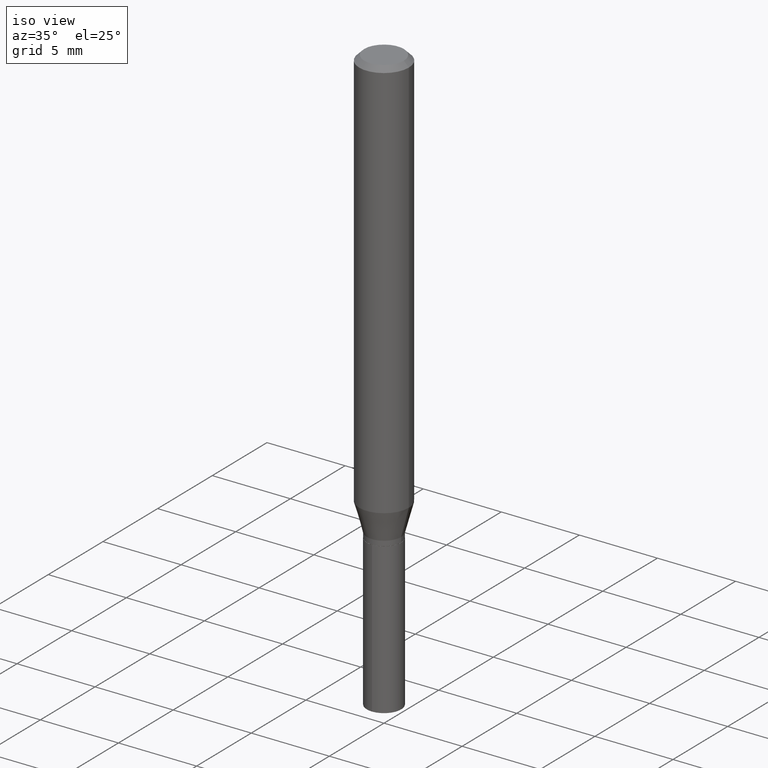
[diagram: clean part render]
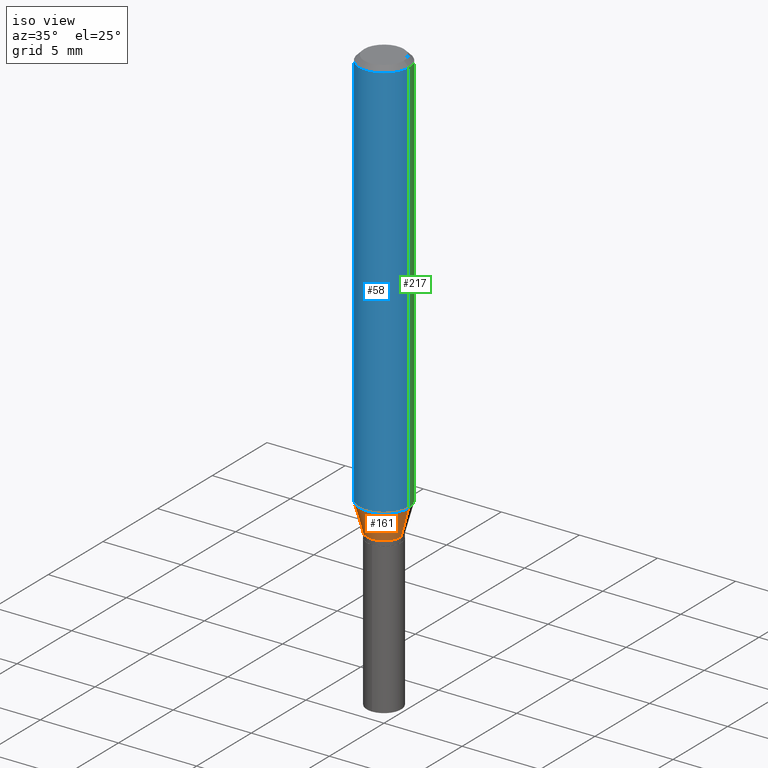
[diagram: same view with three faces highlighted in distinct colors, each labeled with its STEP entity id]
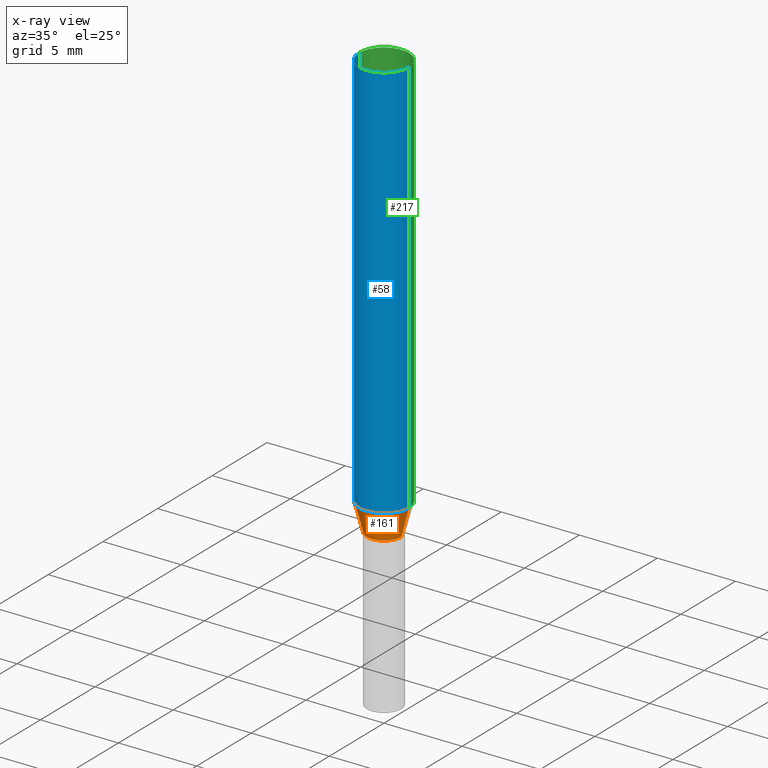
[diagram: x-ray of the same camera — body ghosted, the three highlighted faces saturated]
A machine part, iso view with three faces highlighted in distinct colors.
The next image is the same camera in x-ray (body ghosted, the three faces saturated) — at least one of them is partly hidden behind the body in this view.
Their STEP definitions:

[orange] entity #161 — the highlighted conical surface has half-angle 15 deg.
#12 = ORIENTED_EDGE ( 'NONE', *, *, #396, .F. ) ;
#22 = DIRECTION ( 'NONE',  ( -2.445468806185136597E-29, 3.491481338843145583E-15, 1.000000000000000000 ) ) ;
#45 = CONICAL_SURFACE ( 'NONE', #464, 0.04329999999999999127, 0.2617993877991499629 ) ;
#57 = DIRECTION ( 'NONE',  ( 1.000000000000000000, -6.982962677686269866E-15, 0.000000000000000000 ) ) ;
#99 = DIRECTION ( 'NONE',  ( 0.2588190451025212391, 1.565188264969622362E-15, 0.9659258262890679791 ) ) ;
#109 = CIRCLE ( 'NONE', #379, 0.04329999999999999127 ) ;
#119 = LINE ( 'NONE', #349, #263 ) ;
#122 = VECTOR ( 'NONE', #99, 39.37007874015748854 ) ;
#128 = VERTEX_POINT ( 'NONE', #456 ) ;
#154 = EDGE_CURVE ( 'NONE', #364, #128, #119, .T. ) ;
#161 = ADVANCED_FACE ( 'NONE', ( #308 ), #45, .T. ) ;
#166 = CARTESIAN_POINT ( 'NONE',  ( 0.04329999999999999127, -4.097602499266315682E-15, -1.087000000000000188 ) ) ;
#177 = ORIENTED_EDGE ( 'NONE', *, *, #376, .T. ) ;
#184 = EDGE_LOOP ( 'NONE', ( #469, #286, #177, #12 ) ) ;
#190 = CIRCLE ( 'NONE', #232, 0.06250000000000012490 ) ;
#205 = CARTESIAN_POINT ( 'NONE',  ( 0.06250000000000012490, -3.981491976273259737E-15, -1.015344624494677328 ) ) ;
#232 = AXIS2_PLACEMENT_3D ( 'NONE', #389, #22, #253 ) ;
#248 = CARTESIAN_POINT ( 'NONE',  ( 2.658224592323243696E-29, -3.795240215322500220E-15, -1.087000000000000188 ) ) ;
#253 = DIRECTION ( 'NONE',  ( 1.000000000000000000, -6.982962677686264344E-15, 0.000000000000000000 ) ) ;
#258 = VERTEX_POINT ( 'NONE', #205 ) ;
#263 = VECTOR ( 'NONE', #462, 39.37007874015748854 ) ;
#286 = ORIENTED_EDGE ( 'NONE', *, *, #358, .T. ) ;
#288 = VERTEX_POINT ( 'NONE', #166 ) ;
#290 = DIRECTION ( 'NONE',  ( -2.445468806185136597E-29, 3.491481338843145583E-15, 1.000000000000000000 ) ) ;
#308 = FACE_OUTER_BOUND ( 'NONE', #184, .T. ) ;
#349 = CARTESIAN_POINT ( 'NONE',  ( -0.04329999999999999127, -3.487575210738376803E-15, -1.087000000000000188 ) ) ;
#357 = CARTESIAN_POINT ( 'NONE',  ( -0.04329999999999999127, -3.509396969106145992E-15, -1.087000000000000188 ) ) ;
#358 = EDGE_CURVE ( 'NONE', #364, #288, #109, .T. ) ;
#361 = LINE ( 'NONE', #431, #122 ) ;
#364 = VERTEX_POINT ( 'NONE', #357 ) ;
#376 = EDGE_CURVE ( 'NONE', #288, #258, #361, .T. ) ;
#379 = AXIS2_PLACEMENT_3D ( 'NONE', #248, #290, #57 ) ;
#380 = DIRECTION ( 'NONE',  ( -2.445468806185136597E-29, 3.491481338843145583E-15, 1.000000000000000000 ) ) ;
#389 = CARTESIAN_POINT ( 'NONE',  ( 2.482993606729494385E-29, -3.545056808917866884E-15, -1.015344624494677328 ) ) ;
#396 = EDGE_CURVE ( 'NONE', #128, #258, #190, .T. ) ;
#423 = CARTESIAN_POINT ( 'NONE',  ( 2.658224592323243696E-29, -3.795240215322500220E-15, -1.087000000000000188 ) ) ;
#426 = DIRECTION ( 'NONE',  ( 1.000000000000000000, -6.982962677686269866E-15, 0.000000000000000000 ) ) ;
#431 = CARTESIAN_POINT ( 'NONE',  ( 0.04329999999999999127, -4.097602499266315682E-15, -1.087000000000000188 ) ) ;
#456 = CARTESIAN_POINT ( 'NONE',  ( -0.06250000000000012490, -3.100967599067803873E-15, -1.015344624494677328 ) ) ;
#462 = DIRECTION ( 'NONE',  ( -0.2588190451025212391, 5.211531920934549464E-15, 0.9659258262890679791 ) ) ;
#464 = AXIS2_PLACEMENT_3D ( 'NONE', #423, #380, #426 ) ;
#469 = ORIENTED_EDGE ( 'NONE', *, *, #154, .F. ) ;

[blue] entity #58 — the highlighted cylindrical surface (edge-blend (fillet) strip) has radius 1.5875 mm, axis along (-0, 0, 1).
#22 = DIRECTION ( 'NONE',  ( -2.445468806185136597E-29, 3.491481338843145583E-15, 1.000000000000000000 ) ) ;
#44 = CARTESIAN_POINT ( 'NONE',  ( 0.06250000000000006939, -4.364351673553921624E-16, 3.047610484872463374E-30 ) ) ;
#58 = ADVANCED_FACE ( 'NONE', ( #151 ), #328, .T. ) ;
#60 = VECTOR ( 'NONE', #298, 39.37007874015748143 ) ;
#83 = VERTEX_POINT ( 'NONE', #366 ) ;
#128 = VERTEX_POINT ( 'NONE', #456 ) ;
#132 = VERTEX_POINT ( 'NONE', #296 ) ;
#141 = CARTESIAN_POINT ( 'NONE',  ( 0.000000000000000000, 0.000000000000000000, 0.000000000000000000 ) ) ;
#151 = FACE_OUTER_BOUND ( 'NONE', #241, .T. ) ;
#157 = AXIS2_PLACEMENT_3D ( 'NONE', #260, #372, #406 ) ;
#190 = CIRCLE ( 'NONE', #232, 0.06250000000000012490 ) ;
#204 = EDGE_CURVE ( 'NONE', #258, #83, #237, .T. ) ;
#205 = CARTESIAN_POINT ( 'NONE',  ( 0.06250000000000012490, -3.981491976273259737E-15, -1.015344624494677328 ) ) ;
#214 = ORIENTED_EDGE ( 'NONE', *, *, #476, .F. ) ;
#232 = AXIS2_PLACEMENT_3D ( 'NONE', #389, #22, #253 ) ;
#235 = VECTOR ( 'NONE', #344, 39.37007874015748143 ) ;
#237 = LINE ( 'NONE', #44, #235 ) ;
#241 = EDGE_LOOP ( 'NONE', ( #246, #359, #256, #214 ) ) ;
#246 = ORIENTED_EDGE ( 'NONE', *, *, #427, .F. ) ;
#253 = DIRECTION ( 'NONE',  ( 1.000000000000000000, -6.982962677686264344E-15, 0.000000000000000000 ) ) ;
#256 = ORIENTED_EDGE ( 'NONE', *, *, #204, .T. ) ;
#258 = VERTEX_POINT ( 'NONE', #205 ) ;
#260 = CARTESIAN_POINT ( 'NONE',  ( 3.056836007731441853E-31, -4.364351673553962300E-17, -0.01250000000000008570 ) ) ;
#262 = CARTESIAN_POINT ( 'NONE',  ( -0.06250000000000006939, 4.440892098500631092E-16, -3.074334431409319267E-30 ) ) ;
#269 = DIRECTION ( 'NONE',  ( 1.000000000000000000, -6.982962677686266711E-15, 4.876176775795935793E-29 ) ) ;
#274 = AXIS2_PLACEMENT_3D ( 'NONE', #141, #449, #269 ) ;
#296 = CARTESIAN_POINT ( 'NONE',  ( -0.06250000000000001388, -1.350260952976639620E-15, -0.01250000000000008570 ) ) ;
#298 = DIRECTION ( 'NONE',  ( -2.445468806185136877E-29, 3.491481338843145188E-15, 1.000000000000000000 ) ) ;
#302 = LINE ( 'NONE', #262, #60 ) ;
#328 = CYLINDRICAL_SURFACE ( 'NONE', #274, 0.06250000000000006939 ) ;
#344 = DIRECTION ( 'NONE',  ( -2.445468806185136877E-29, 3.491481338843145188E-15, 1.000000000000000000 ) ) ;
#359 = ORIENTED_EDGE ( 'NONE', *, *, #396, .T. ) ;
#366 = CARTESIAN_POINT ( 'NONE',  ( 0.06250000000000001388, -4.800786840909313294E-16, -0.01250000000000008570 ) ) ;
#372 = DIRECTION ( 'NONE',  ( -2.445468806185136597E-29, 3.491481338843145583E-15, 1.000000000000000000 ) ) ;
#389 = CARTESIAN_POINT ( 'NONE',  ( 2.482993606729494385E-29, -3.545056808917866884E-15, -1.015344624494677328 ) ) ;
#396 = EDGE_CURVE ( 'NONE', #128, #258, #190, .T. ) ;
#406 = DIRECTION ( 'NONE',  ( 1.000000000000000000, -6.982962677686265922E-15, 0.000000000000000000 ) ) ;
#427 = EDGE_CURVE ( 'NONE', #128, #132, #302, .T. ) ;
#441 = CIRCLE ( 'NONE', #157, 0.06250000000000001388 ) ;
#449 = DIRECTION ( 'NONE',  ( -2.445468806185136597E-29, 3.491481338843145583E-15, 1.000000000000000000 ) ) ;
#456 = CARTESIAN_POINT ( 'NONE',  ( -0.06250000000000012490, -3.100967599067803873E-15, -1.015344624494677328 ) ) ;
#476 = EDGE_CURVE ( 'NONE', #132, #83, #441, .T. ) ;

[green] entity #217 — the highlighted cylindrical surface (edge-blend (fillet) strip) has radius 1.5875 mm, axis along (-0, 0, 1).
#5 = AXIS2_PLACEMENT_3D ( 'NONE', #335, #417, #446 ) ;
#14 = EDGE_CURVE ( 'NONE', #258, #128, #378, .T. ) ;
#26 = EDGE_LOOP ( 'NONE', ( #201, #134, #30, #315 ) ) ;
#30 = ORIENTED_EDGE ( 'NONE', *, *, #351, .F. ) ;
#44 = CARTESIAN_POINT ( 'NONE',  ( 0.06250000000000006939, -4.364351673553921624E-16, 3.047610484872463374E-30 ) ) ;
#55 = DIRECTION ( 'NONE',  ( 1.000000000000000000, -6.982962677686265922E-15, 0.000000000000000000 ) ) ;
#60 = VECTOR ( 'NONE', #298, 39.37007874015748143 ) ;
#68 = AXIS2_PLACEMENT_3D ( 'NONE', #284, #139, #55 ) ;
#83 = VERTEX_POINT ( 'NONE', #366 ) ;
#123 = DIRECTION ( 'NONE',  ( 1.000000000000000000, -6.982962677686266711E-15, 4.876176775795935793E-29 ) ) ;
#128 = VERTEX_POINT ( 'NONE', #456 ) ;
#132 = VERTEX_POINT ( 'NONE', #296 ) ;
#134 = ORIENTED_EDGE ( 'NONE', *, *, #427, .T. ) ;
#139 = DIRECTION ( 'NONE',  ( -2.445468806185136597E-29, 3.491481338843145583E-15, 1.000000000000000000 ) ) ;
#197 = CYLINDRICAL_SURFACE ( 'NONE', #252, 0.06250000000000006939 ) ;
#201 = ORIENTED_EDGE ( 'NONE', *, *, #14, .T. ) ;
#204 = EDGE_CURVE ( 'NONE', #258, #83, #237, .T. ) ;
#205 = CARTESIAN_POINT ( 'NONE',  ( 0.06250000000000012490, -3.981491976273259737E-15, -1.015344624494677328 ) ) ;
#217 = ADVANCED_FACE ( 'NONE', ( #310 ), #197, .T. ) ;
#235 = VECTOR ( 'NONE', #344, 39.37007874015748143 ) ;
#237 = LINE ( 'NONE', #44, #235 ) ;
#252 = AXIS2_PLACEMENT_3D ( 'NONE', #348, #461, #123 ) ;
#258 = VERTEX_POINT ( 'NONE', #205 ) ;
#262 = CARTESIAN_POINT ( 'NONE',  ( -0.06250000000000006939, 4.440892098500631092E-16, -3.074334431409319267E-30 ) ) ;
#284 = CARTESIAN_POINT ( 'NONE',  ( 3.056836007731441853E-31, -4.364351673553962300E-17, -0.01250000000000008570 ) ) ;
#296 = CARTESIAN_POINT ( 'NONE',  ( -0.06250000000000001388, -1.350260952976639620E-15, -0.01250000000000008570 ) ) ;
#298 = DIRECTION ( 'NONE',  ( -2.445468806185136877E-29, 3.491481338843145188E-15, 1.000000000000000000 ) ) ;
#302 = LINE ( 'NONE', #262, #60 ) ;
#310 = FACE_OUTER_BOUND ( 'NONE', #26, .T. ) ;
#315 = ORIENTED_EDGE ( 'NONE', *, *, #204, .F. ) ;
#335 = CARTESIAN_POINT ( 'NONE',  ( 2.482993606729494385E-29, -3.545056808917866884E-15, -1.015344624494677328 ) ) ;
#344 = DIRECTION ( 'NONE',  ( -2.445468806185136877E-29, 3.491481338843145188E-15, 1.000000000000000000 ) ) ;
#348 = CARTESIAN_POINT ( 'NONE',  ( 0.000000000000000000, 0.000000000000000000, 0.000000000000000000 ) ) ;
#351 = EDGE_CURVE ( 'NONE', #83, #132, #465, .T. ) ;
#366 = CARTESIAN_POINT ( 'NONE',  ( 0.06250000000000001388, -4.800786840909313294E-16, -0.01250000000000008570 ) ) ;
#378 = CIRCLE ( 'NONE', #5, 0.06250000000000012490 ) ;
#417 = DIRECTION ( 'NONE',  ( -2.445468806185136597E-29, 3.491481338843145583E-15, 1.000000000000000000 ) ) ;
#427 = EDGE_CURVE ( 'NONE', #128, #132, #302, .T. ) ;
#446 = DIRECTION ( 'NONE',  ( 1.000000000000000000, -6.982962677686264344E-15, 0.000000000000000000 ) ) ;
#456 = CARTESIAN_POINT ( 'NONE',  ( -0.06250000000000012490, -3.100967599067803873E-15, -1.015344624494677328 ) ) ;
#461 = DIRECTION ( 'NONE',  ( -2.445468806185136597E-29, 3.491481338843145583E-15, 1.000000000000000000 ) ) ;
#465 = CIRCLE ( 'NONE', #68, 0.06250000000000001388 ) ;